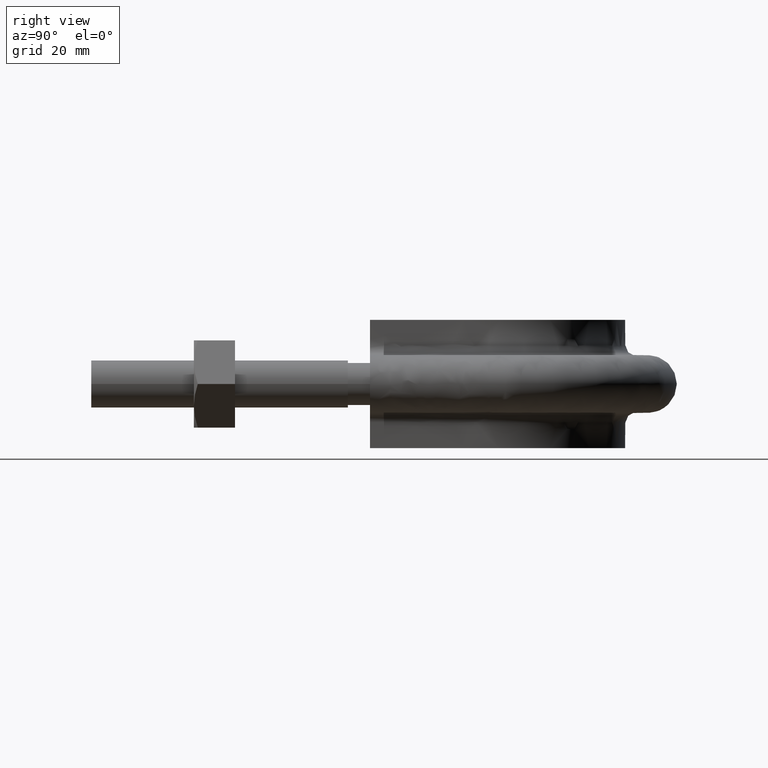
[diagram: clean part render]
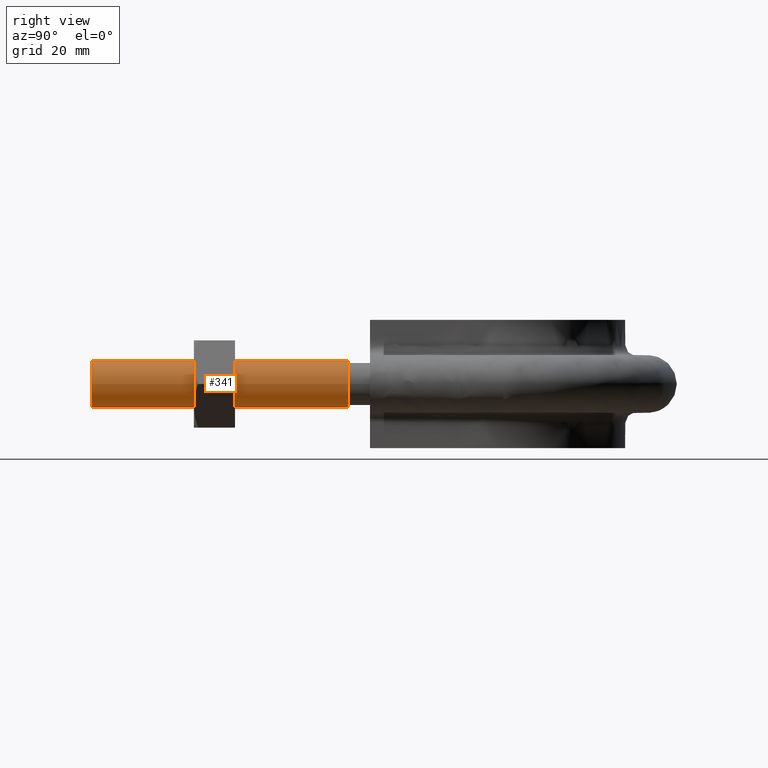
[diagram: same view with one face highlighted and labeled with its STEP entity id]
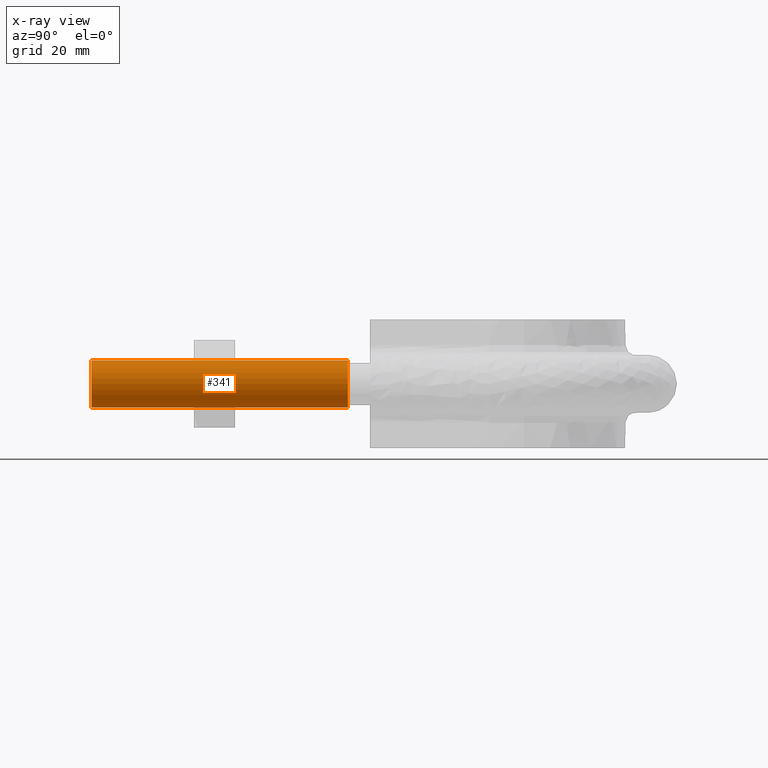
[diagram: x-ray of the same camera — body ghosted, the highlighted face saturated]
A machine part, right view. The second image highlights one B-rep face of the part: STEP entity #341.
The next image is the same camera in x-ray: the body ghosted, the highlighted face saturated — about 0% of this face is hidden behind the body in this view.
In plain terms, the highlighted cylindrical surface (bore or boss wall) has radius 4.6 mm, axis along (-0, -1, -0).
Its self-contained STEP definition (entity closure, byte-faithful):
#341 = ADVANCED_FACE( '', ( #452, #453 ), #454, .T. );
#452 = FACE_OUTER_BOUND( '', #1451, .T. );
#453 = FACE_OUTER_BOUND( '', #1452, .T. );
#454 = CYLINDRICAL_SURFACE( '', #1453, 4.60000000000000 );
#1451 = EDGE_LOOP( '', ( #1739 ) );
#1452 = EDGE_LOOP( '', ( #1740 ) );
#1453 = AXIS2_PLACEMENT_3D( '', #1741, #1742, #1743 );
#1739 = ORIENTED_EDGE( '', *, *, #2155, .F. );
#1740 = ORIENTED_EDGE( '', *, *, #2156, .T. );
#1741 = CARTESIAN_POINT( '', ( 31.0000000000000, 50.0000000000000, 1.55065779552758E-014 ) );
#1742 = DIRECTION( '', ( -2.44921270764475E-016, -1.00000000000000, -3.06151588455594E-016 ) );
#1743 = DIRECTION( '', ( 1.00000000000000, -2.44921270764475E-016, -3.74915180455534E-032 ) );
#2155 = EDGE_CURVE( '', #2333, #2333, #2334, .T. );
#2156 = EDGE_CURVE( '', #2335, #2335, #2336, .T. );
#2333 = VERTEX_POINT( '', #2823 );
#2334 = CIRCLE( '', #2824, 4.60000000000000 );
#2335 = VERTEX_POINT( '', #2825 );
#2336 = CIRCLE( '', #2826, 4.60000000000000 );
#2823 = CARTESIAN_POINT( '', ( 35.6000000000000, -8.71919723921533E-015, 1.98998532496135E-016 ) );
#2824 = AXIS2_PLACEMENT_3D( '', #3213, #3214, #3215 );
#2825 = CARTESIAN_POINT( '', ( 35.6000000000000, 50.0000000000000, 1.55065779552758E-014 ) );
#2826 = AXIS2_PLACEMENT_3D( '', #3216, #3217, #3218 );
#3213 = CARTESIAN_POINT( '', ( 31.0000000000000, -7.59255939369874E-015, 1.98998532496135E-016 ) );
#3214 = DIRECTION( '', ( -2.44921270764475E-016, -1.00000000000000, -3.06151588455594E-016 ) );
#3215 = DIRECTION( '', ( 1.00000000000000, -2.44921270764475E-016, -3.74915180455534E-032 ) );
#3216 = CARTESIAN_POINT( '', ( 31.0000000000000, 50.0000000000000, 1.55065779552758E-014 ) );
#3217 = DIRECTION( '', ( -2.44921270764475E-016, -1.00000000000000, -3.06151588455594E-016 ) );
#3218 = DIRECTION( '', ( 1.00000000000000, -2.44921270764475E-016, -3.74915180455534E-032 ) );